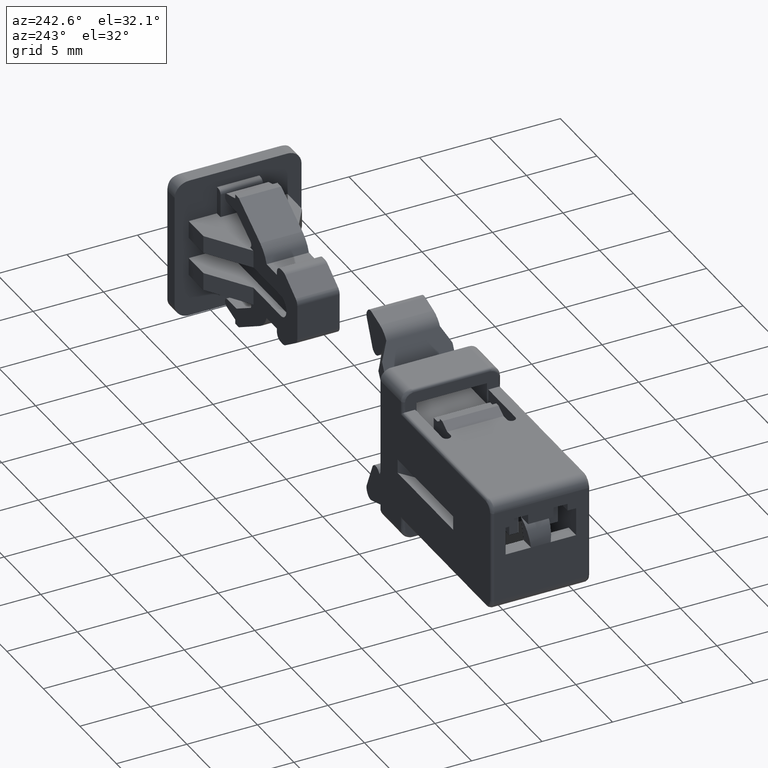
[diagram: clean part render]
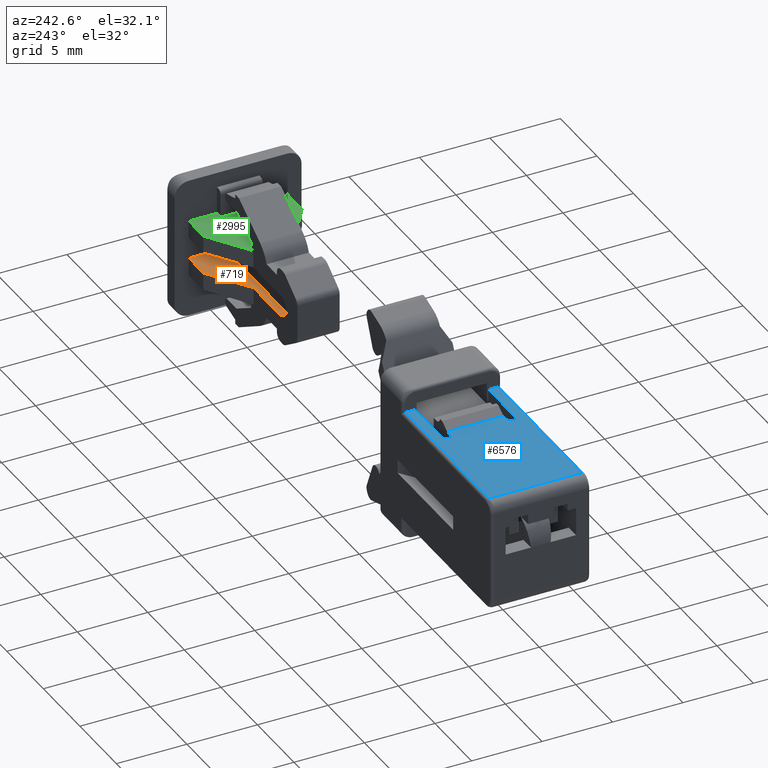
[diagram: same view with three faces highlighted in distinct colors, each labeled with its STEP entity id]
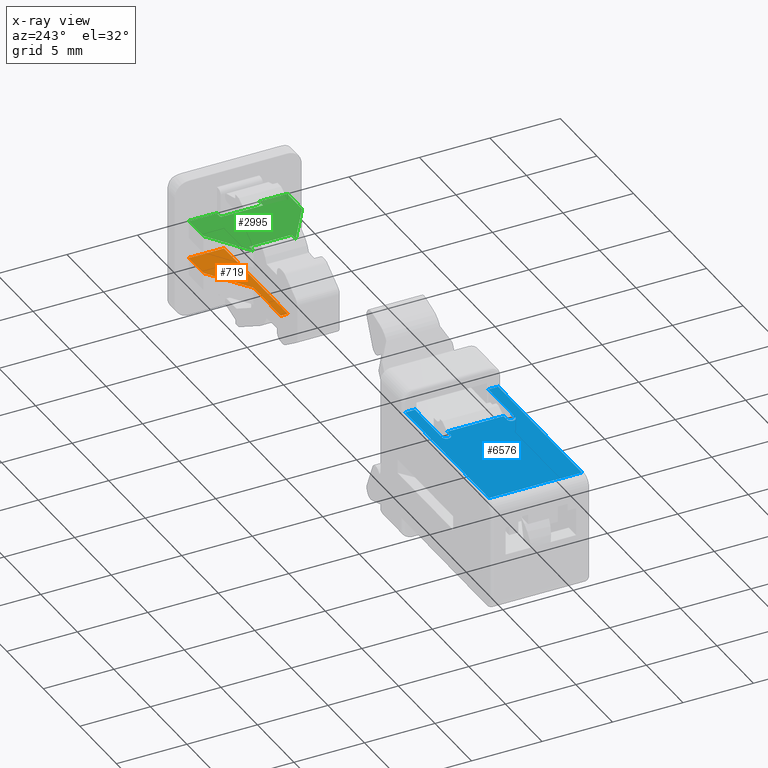
[diagram: x-ray of the same camera — body ghosted, the three highlighted faces saturated]
A machine part, auxiliary view with three faces highlighted in distinct colors.
The next image is the same camera in x-ray (body ghosted, the three faces saturated) — at least one of them is partly hidden behind the body in this view.
Their STEP definitions:

[orange] entity #719 — the highlighted face is a freeform B-spline surface patch.
#597=CARTESIAN_POINT('',(17.483476587557899,1.0,-0.749999999999901));
#598=VERTEX_POINT('',#597);
#621=CARTESIAN_POINT('',(26.233476587557899,1.0,-0.749999999999901));
#622=VERTEX_POINT('',#621);
#628=CARTESIAN_POINT('',(26.233476587557899,1.0,-0.749999999999901));
#629=CARTESIAN_POINT('',(17.483476587557899,1.0,-0.749999999999901));
#630=QUASI_UNIFORM_CURVE('',1,(#628,#629),.UNSPECIFIED.,.F.,.U.);
#631=EDGE_CURVE('',#622,#598,#630,.T.);
#678=CARTESIAN_POINT('',(26.670539152737440,0.875125004845488,-0.749999999999901));
#679=CARTESIAN_POINT('',(17.046413865916168,0.875125004845488,-0.749999999999901));
#680=CARTESIAN_POINT('',(26.670539152737440,3.624875062209688,-0.749999999999901));
#681=CARTESIAN_POINT('',(17.046413865916168,3.624875062209688,-0.749999999999901));
#682=B_SPLINE_SURFACE_WITH_KNOTS('',1,1,((#678,#680),(#679,#681)),.UNSPECIFIED.,.F.,.F.,.U.,(2,2),(2,2),(0.0,9.624125286821275),(0.0,2.749750057364200),.UNSPECIFIED.);
#683=CARTESIAN_POINT('',(24.233476587557849,3.499999999999950,-0.749999999999901));
#684=VERTEX_POINT('',#683);
#685=CARTESIAN_POINT('',(21.233476587557750,1.500000000000000,-0.749999999999901));
#686=VERTEX_POINT('',#685);
#687=CARTESIAN_POINT('',(24.233476587557849,3.499999999999950,-0.749999999999901));
#688=CARTESIAN_POINT('',(21.233476587557750,1.500000000000000,-0.749999999999901));
#689=QUASI_UNIFORM_CURVE('',1,(#687,#688),.UNSPECIFIED.,.F.,.U.);
#690=EDGE_CURVE('',#684,#686,#689,.T.);
#691=ORIENTED_EDGE('',*,*,#690,.T.);
#692=CARTESIAN_POINT('',(17.483476587557899,1.499999999999946,-0.749999999999901));
#693=VERTEX_POINT('',#692);
#694=CARTESIAN_POINT('',(17.483476587557899,1.499999999999946,-0.749999999999901));
#695=CARTESIAN_POINT('',(21.233476587557750,1.500000000000000,-0.749999999999901));
#696=QUASI_UNIFORM_CURVE('',1,(#694,#695),.UNSPECIFIED.,.F.,.U.);
#697=EDGE_CURVE('',#693,#686,#696,.T.);
#698=ORIENTED_EDGE('',*,*,#697,.F.);
#699=CARTESIAN_POINT('',(17.483476587557899,1.499999999999946,-0.749999999999901));
#700=CARTESIAN_POINT('',(17.483476587557899,1.0,-0.749999999999901));
#701=QUASI_UNIFORM_CURVE('',1,(#699,#700),.UNSPECIFIED.,.F.,.U.);
#702=EDGE_CURVE('',#693,#598,#701,.T.);
#703=ORIENTED_EDGE('',*,*,#702,.T.);
#704=ORIENTED_EDGE('',*,*,#631,.F.);
#705=CARTESIAN_POINT('',(26.233476587557899,3.499999999999950,-0.749999999999901));
#706=VERTEX_POINT('',#705);
#707=CARTESIAN_POINT('',(26.233476587557899,3.499999999999950,-0.749999999999901));
#708=CARTESIAN_POINT('',(26.233476587557899,1.0,-0.749999999999901));
#709=QUASI_UNIFORM_CURVE('',1,(#707,#708),.UNSPECIFIED.,.F.,.U.);
#710=EDGE_CURVE('',#706,#622,#709,.T.);
#711=ORIENTED_EDGE('',*,*,#710,.F.);
#712=CARTESIAN_POINT('',(26.233476587557899,3.499999999999950,-0.749999999999901));
#713=CARTESIAN_POINT('',(24.233476587557849,3.499999999999950,-0.749999999999901));
#714=QUASI_UNIFORM_CURVE('',1,(#712,#713),.UNSPECIFIED.,.F.,.U.);
#715=EDGE_CURVE('',#706,#684,#714,.T.);
#716=ORIENTED_EDGE('',*,*,#715,.T.);
#717=EDGE_LOOP('',(#691,#698,#703,#704,#711,#716));
#718=FACE_OUTER_BOUND('',#717,.T.);
#719=ADVANCED_FACE('',(#718),#682,.F.);

[blue] entity #6576 — the highlighted face is a freeform B-spline surface patch.
#3149=CARTESIAN_POINT('',(-3.0,-3.300000000000000,4.0));
#3150=VERTEX_POINT('',#3149);
#3381=CARTESIAN_POINT('',(-3.0,3.300000000000080,4.0));
#3382=VERTEX_POINT('',#3381);
#3868=CARTESIAN_POINT('',(-14.449999999999999,3.300000000000080,4.0));
#3869=VERTEX_POINT('',#3868);
#3929=CARTESIAN_POINT('',(-3.0,3.300000000000080,4.0));
#3930=CARTESIAN_POINT('',(-14.449999999999999,3.300000000000080,4.0));
#3931=QUASI_UNIFORM_CURVE('',1,(#3929,#3930),.UNSPECIFIED.,.F.,.U.);
#3932=EDGE_CURVE('',#3382,#3869,#3931,.T.);
#4117=CARTESIAN_POINT('',(-14.449999999999999,-3.300000000000000,4.0));
#4118=VERTEX_POINT('',#4117);
#4182=CARTESIAN_POINT('',(-14.449999999999999,-3.300000000000000,4.0));
#4183=CARTESIAN_POINT('',(-3.0,-3.300000000000000,4.0));
#4184=QUASI_UNIFORM_CURVE('',1,(#4182,#4183),.UNSPECIFIED.,.F.,.U.);
#4185=EDGE_CURVE('',#4118,#3150,#4184,.T.);
#5202=CARTESIAN_POINT('',(-6.242820000000000,-2.0,3.999999999999901));
#5203=VERTEX_POINT('',#5202);
#5216=CARTESIAN_POINT('',(-6.242820000000000,2.0,3.999999999999901));
#5217=VERTEX_POINT('',#5216);
#5223=CARTESIAN_POINT('',(-6.242820000000000,2.0,3.999999999999901));
#5224=CARTESIAN_POINT('',(-6.242820000000000,-2.0,3.999999999999901));
#5225=QUASI_UNIFORM_CURVE('',1,(#5223,#5224),.UNSPECIFIED.,.F.,.U.);
#5226=EDGE_CURVE('',#5217,#5203,#5225,.T.);
#5649=CARTESIAN_POINT('',(-6.700000000000000,-2.600000000000000,4.0));
#5650=VERTEX_POINT('',#5649);
#5656=CARTESIAN_POINT('',(-3.0,-2.599999999999935,4.0));
#5657=VERTEX_POINT('',#5656);
#5658=CARTESIAN_POINT('',(-6.700000000000000,-2.600000000000000,4.0));
#5659=CARTESIAN_POINT('',(-3.0,-2.599999999999935,4.0));
#5660=QUASI_UNIFORM_CURVE('',1,(#5658,#5659),.UNSPECIFIED.,.F.,.U.);
#5661=EDGE_CURVE('',#5650,#5657,#5660,.T.);
#5677=CARTESIAN_POINT('',(-3.0,2.600000000000000,4.0));
#5678=VERTEX_POINT('',#5677);
#5684=CARTESIAN_POINT('',(-6.700000000000000,2.600000000000000,4.0));
#5685=VERTEX_POINT('',#5684);
#5686=CARTESIAN_POINT('',(-3.0,2.600000000000000,4.0));
#5687=CARTESIAN_POINT('',(-6.700000000000000,2.600000000000000,4.0));
#5688=QUASI_UNIFORM_CURVE('',1,(#5686,#5687),.UNSPECIFIED.,.F.,.U.);
#5689=EDGE_CURVE('',#5678,#5685,#5688,.T.);
#5720=CARTESIAN_POINT('',(-6.700000000000000,2.0,4.0));
#5721=VERTEX_POINT('',#5720);
#5722=CARTESIAN_POINT('',(-6.700000000000000,2.0,4.0));
#5723=CARTESIAN_POINT('',(-6.999999999999999,2.0,4.0));
#5724=CARTESIAN_POINT('',(-7.0,2.300000000000000,4.0));
#5725=CARTESIAN_POINT('',(-6.999999999999999,2.600000000000001,4.0));
#5726=CARTESIAN_POINT('',(-6.700000000000000,2.600000000000000,4.0));
#5734=(BOUNDED_CURVE()B_SPLINE_CURVE(2,(#5722,#5723,#5724,#5725,#5726),.UNSPECIFIED.,.F.,.U.)B_SPLINE_CURVE_WITH_KNOTS((3,2,3),(0.0,0.500000000000000,1.0),.UNSPECIFIED.)CURVE()GEOMETRIC_REPRESENTATION_ITEM()RATIONAL_B_SPLINE_CURVE((1.0,0.707106781186547,1.0,0.707106781186547,1.0))REPRESENTATION_ITEM(''));
#5735=EDGE_CURVE('',#5721,#5685,#5734,.T.);
#5855=CARTESIAN_POINT('',(-6.700000000000000,-2.0,4.0));
#5856=VERTEX_POINT('',#5855);
#5862=CARTESIAN_POINT('',(-6.700000000000000,-2.600000000000000,4.0));
#5863=CARTESIAN_POINT('',(-6.999999999999999,-2.600000000000001,4.0));
#5864=CARTESIAN_POINT('',(-7.0,-2.300000000000000,4.0));
#5865=CARTESIAN_POINT('',(-6.999999999999999,-2.0,4.0));
#5866=CARTESIAN_POINT('',(-6.700000000000000,-2.0,4.0));
#5874=(BOUNDED_CURVE()B_SPLINE_CURVE(2,(#5862,#5863,#5864,#5865,#5866),.UNSPECIFIED.,.F.,.U.)B_SPLINE_CURVE_WITH_KNOTS((3,2,3),(0.0,0.500000000000000,1.0),.UNSPECIFIED.)CURVE()GEOMETRIC_REPRESENTATION_ITEM()RATIONAL_B_SPLINE_CURVE((1.0,0.707106781186547,1.0,0.707106781186547,1.0))REPRESENTATION_ITEM(''));
#5875=EDGE_CURVE('',#5650,#5856,#5874,.T.);
#5905=CARTESIAN_POINT('',(-6.700000000000000,2.0,4.0));
#5906=CARTESIAN_POINT('',(-6.242820000000000,2.0,3.999999999999901));
#5907=QUASI_UNIFORM_CURVE('',1,(#5905,#5906),.UNSPECIFIED.,.F.,.U.);
#5908=EDGE_CURVE('',#5721,#5217,#5907,.T.);
#5967=CARTESIAN_POINT('',(-6.242820000000000,-2.0,3.999999999999901));
#5968=CARTESIAN_POINT('',(-6.700000000000000,-2.0,4.0));
#5969=QUASI_UNIFORM_CURVE('',1,(#5967,#5968),.UNSPECIFIED.,.F.,.U.);
#5970=EDGE_CURVE('',#5203,#5856,#5969,.T.);
#6063=CARTESIAN_POINT('',(-14.449999999999999,3.300000000000080,4.0));
#6064=CARTESIAN_POINT('',(-14.449999999999999,-3.300000000000000,4.0));
#6065=QUASI_UNIFORM_CURVE('',1,(#6063,#6064),.UNSPECIFIED.,.F.,.U.);
#6066=EDGE_CURVE('',#3869,#4118,#6065,.T.);
#6462=CARTESIAN_POINT('',(-3.0,-2.599999999999935,4.0));
#6463=CARTESIAN_POINT('',(-3.0,-3.300000000000000,4.0));
#6464=QUASI_UNIFORM_CURVE('',1,(#6462,#6463),.UNSPECIFIED.,.F.,.U.);
#6465=EDGE_CURVE('',#5657,#3150,#6464,.T.);
#6472=CARTESIAN_POINT('',(-3.0,3.300000000000080,4.0));
#6473=CARTESIAN_POINT('',(-3.0,2.600000000000000,4.0));
#6474=QUASI_UNIFORM_CURVE('',1,(#6472,#6473),.UNSPECIFIED.,.F.,.U.);
#6475=EDGE_CURVE('',#3382,#5678,#6474,.T.);
#6557=CARTESIAN_POINT('',(-2.428072563099764,-3.629669987207924,4.0));
#6558=CARTESIAN_POINT('',(-15.021926925045349,-3.629669987207924,4.0));
#6559=CARTESIAN_POINT('',(-2.428072563099764,3.629670164233799,4.0));
#6560=CARTESIAN_POINT('',(-15.021926925045349,3.629670164233799,4.0));
#6561=B_SPLINE_SURFACE_WITH_KNOTS('',1,1,((#6557,#6559),(#6558,#6560)),.UNSPECIFIED.,.F.,.F.,.U.,(2,2),(2,2),(0.0,12.593854361945590),(0.0,7.259340151441723),.UNSPECIFIED.);
#6562=ORIENTED_EDGE('',*,*,#6475,.F.);
#6563=ORIENTED_EDGE('',*,*,#3932,.T.);
#6564=ORIENTED_EDGE('',*,*,#6066,.T.);
#6565=ORIENTED_EDGE('',*,*,#4185,.T.);
#6566=ORIENTED_EDGE('',*,*,#6465,.F.);
#6567=ORIENTED_EDGE('',*,*,#5661,.F.);
#6568=ORIENTED_EDGE('',*,*,#5875,.T.);
#6569=ORIENTED_EDGE('',*,*,#5970,.F.);
#6570=ORIENTED_EDGE('',*,*,#5226,.F.);
#6571=ORIENTED_EDGE('',*,*,#5908,.F.);
#6572=ORIENTED_EDGE('',*,*,#5735,.T.);
#6573=ORIENTED_EDGE('',*,*,#5689,.F.);
#6574=EDGE_LOOP('',(#6562,#6563,#6564,#6565,#6566,#6567,#6568,#6569,#6570,#6571,#6572,#6573));
#6575=FACE_OUTER_BOUND('',#6574,.T.);
#6576=ADVANCED_FACE('',(#6575),#6561,.F.);

[green] entity #2995 — the highlighted face is a freeform B-spline surface patch.
#936=CARTESIAN_POINT('',(21.233476587557750,-1.500000000000000,1.999999999999890));
#937=VERTEX_POINT('',#936);
#943=CARTESIAN_POINT('',(21.790795587557650,-1.499999999999946,2.0));
#944=VERTEX_POINT('',#943);
#945=CARTESIAN_POINT('',(21.790795587557650,-1.499999999999946,2.0));
#946=CARTESIAN_POINT('',(21.233476587557750,-1.500000000000000,1.999999999999890));
#947=QUASI_UNIFORM_CURVE('',1,(#945,#946),.UNSPECIFIED.,.F.,.U.);
#948=EDGE_CURVE('',#944,#937,#947,.T.);
#1639=CARTESIAN_POINT('',(21.790795587557650,1.499999999999946,2.000000000000055));
#1640=VERTEX_POINT('',#1639);
#1656=CARTESIAN_POINT('',(21.233476587557750,1.500000000000000,2.0));
#1657=VERTEX_POINT('',#1656);
#1658=CARTESIAN_POINT('',(21.790795587557650,1.499999999999946,2.000000000000055));
#1659=CARTESIAN_POINT('',(21.233476587557750,1.500000000000000,2.0));
#1660=QUASI_UNIFORM_CURVE('',1,(#1658,#1659),.UNSPECIFIED.,.F.,.U.);
#1661=EDGE_CURVE('',#1640,#1657,#1660,.T.);
#1984=CARTESIAN_POINT('',(21.790795587557650,1.499999999999946,2.000000000000055));
#1985=CARTESIAN_POINT('',(21.790795587557650,-1.499999999999946,2.0));
#1986=QUASI_UNIFORM_CURVE('',1,(#1984,#1985),.UNSPECIFIED.,.F.,.U.);
#1987=EDGE_CURVE('',#1640,#944,#1986,.T.);
#2532=CARTESIAN_POINT('',(25.733476587557750,-1.500000000000000,2.0));
#2533=VERTEX_POINT('',#2532);
#2534=CARTESIAN_POINT('',(25.733476587557750,1.500000000000000,2.0));
#2535=VERTEX_POINT('',#2534);
#2536=CARTESIAN_POINT('',(25.733476587557750,-1.500000000000000,2.0));
#2537=CARTESIAN_POINT('',(25.733476587557750,1.500000000000000,2.0));
#2538=QUASI_UNIFORM_CURVE('',1,(#2536,#2537),.UNSPECIFIED.,.F.,.U.);
#2539=EDGE_CURVE('',#2533,#2535,#2538,.T.);
#2568=CARTESIAN_POINT('',(26.233476587557899,-1.500000000000000,2.0));
#2569=VERTEX_POINT('',#2568);
#2570=CARTESIAN_POINT('',(26.233476587557899,-1.500000000000000,2.0));
#2571=CARTESIAN_POINT('',(25.733476587557750,-1.500000000000000,2.0));
#2572=QUASI_UNIFORM_CURVE('',1,(#2570,#2571),.UNSPECIFIED.,.F.,.U.);
#2573=EDGE_CURVE('',#2569,#2533,#2572,.T.);
#2603=CARTESIAN_POINT('',(26.233476587557899,1.500000000000000,2.0));
#2604=VERTEX_POINT('',#2603);
#2610=CARTESIAN_POINT('',(26.233476587557899,1.500000000000000,2.0));
#2611=CARTESIAN_POINT('',(25.733476587557750,1.500000000000000,2.0));
#2612=QUASI_UNIFORM_CURVE('',1,(#2610,#2611),.UNSPECIFIED.,.F.,.U.);
#2613=EDGE_CURVE('',#2604,#2535,#2612,.T.);
#2661=CARTESIAN_POINT('',(24.233476587557899,3.500000000000000,2.0));
#2662=VERTEX_POINT('',#2661);
#2663=CARTESIAN_POINT('',(24.233476587557899,3.500000000000000,2.0));
#2664=CARTESIAN_POINT('',(21.233476587557750,1.500000000000000,2.0));
#2665=QUASI_UNIFORM_CURVE('',1,(#2663,#2664),.UNSPECIFIED.,.F.,.U.);
#2666=EDGE_CURVE('',#2662,#1657,#2665,.T.);
#2683=CARTESIAN_POINT('',(26.233476587557899,3.500000000000000,2.0));
#2684=VERTEX_POINT('',#2683);
#2685=CARTESIAN_POINT('',(26.233476587557899,3.500000000000000,2.0));
#2686=CARTESIAN_POINT('',(24.233476587557899,3.500000000000000,2.0));
#2687=QUASI_UNIFORM_CURVE('',1,(#2685,#2686),.UNSPECIFIED.,.F.,.U.);
#2688=EDGE_CURVE('',#2684,#2662,#2687,.T.);
#2704=CARTESIAN_POINT('',(26.233476587557899,-3.499999999999950,2.0));
#2705=VERTEX_POINT('',#2704);
#2711=CARTESIAN_POINT('',(24.233476587557899,-3.500000000000000,2.0));
#2712=VERTEX_POINT('',#2711);
#2713=CARTESIAN_POINT('',(24.233476587557899,-3.500000000000000,2.0));
#2714=CARTESIAN_POINT('',(26.233476587557899,-3.499999999999950,2.0));
#2715=QUASI_UNIFORM_CURVE('',1,(#2713,#2714),.UNSPECIFIED.,.F.,.U.);
#2716=EDGE_CURVE('',#2712,#2705,#2715,.T.);
#2733=CARTESIAN_POINT('',(21.233476587557750,-1.500000000000000,1.999999999999890));
#2734=CARTESIAN_POINT('',(24.233476587557899,-3.500000000000000,2.0));
#2735=QUASI_UNIFORM_CURVE('',1,(#2733,#2734),.UNSPECIFIED.,.F.,.U.);
#2736=EDGE_CURVE('',#937,#2712,#2735,.T.);
#2936=CARTESIAN_POINT('',(26.233476587557899,1.500000000000000,2.0));
#2937=CARTESIAN_POINT('',(26.233476587557899,3.500000000000000,2.0));
#2938=QUASI_UNIFORM_CURVE('',1,(#2936,#2937),.UNSPECIFIED.,.F.,.U.);
#2939=EDGE_CURVE('',#2604,#2684,#2938,.T.);
#2944=CARTESIAN_POINT('',(26.233476587557899,-3.499999999999950,2.0));
#2945=CARTESIAN_POINT('',(26.233476587557899,-1.500000000000000,2.0));
#2946=QUASI_UNIFORM_CURVE('',1,(#2944,#2945),.UNSPECIFIED.,.F.,.U.);
#2947=EDGE_CURVE('',#2705,#2569,#2946,.T.);
#2976=CARTESIAN_POINT('',(20.983726644185140,3.849649986432643,2.0));
#2977=CARTESIAN_POINT('',(26.483226709744450,3.849649986432643,2.0));
#2978=CARTESIAN_POINT('',(20.983726644185140,-3.849650174187273,2.0));
#2979=CARTESIAN_POINT('',(26.483226709744450,-3.849650174187273,2.0));
#2980=B_SPLINE_SURFACE_WITH_KNOTS('',1,1,((#2976,#2978),(#2977,#2979)),.UNSPECIFIED.,.F.,.F.,.U.,(2,2),(2,2),(0.0,5.499500065559310),(0.0,7.699300160619915),.UNSPECIFIED.);
#2981=ORIENTED_EDGE('',*,*,#1661,.F.);
#2982=ORIENTED_EDGE('',*,*,#1987,.T.);
#2983=ORIENTED_EDGE('',*,*,#948,.T.);
#2984=ORIENTED_EDGE('',*,*,#2736,.T.);
#2985=ORIENTED_EDGE('',*,*,#2716,.T.);
#2986=ORIENTED_EDGE('',*,*,#2947,.T.);
#2987=ORIENTED_EDGE('',*,*,#2573,.T.);
#2988=ORIENTED_EDGE('',*,*,#2539,.T.);
#2989=ORIENTED_EDGE('',*,*,#2613,.F.);
#2990=ORIENTED_EDGE('',*,*,#2939,.T.);
#2991=ORIENTED_EDGE('',*,*,#2688,.T.);
#2992=ORIENTED_EDGE('',*,*,#2666,.T.);
#2993=EDGE_LOOP('',(#2981,#2982,#2983,#2984,#2985,#2986,#2987,#2988,#2989,#2990,#2991,#2992));
#2994=FACE_OUTER_BOUND('',#2993,.T.);
#2995=ADVANCED_FACE('',(#2994),#2980,.F.);